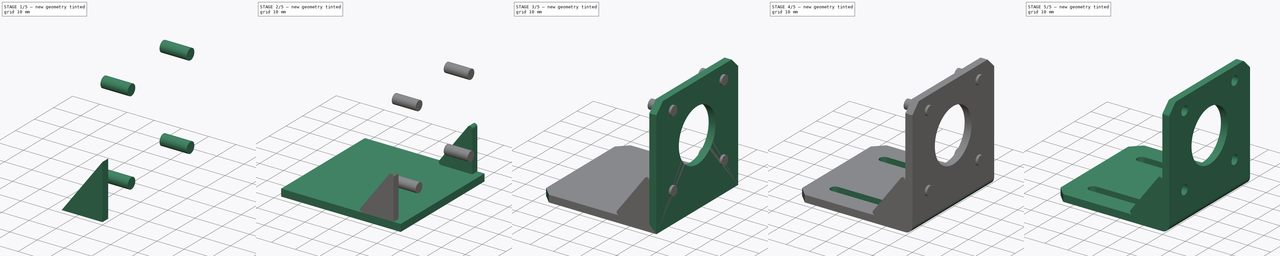
[diagram: build sequence overview — one tinted view per stage of 5, left to right]
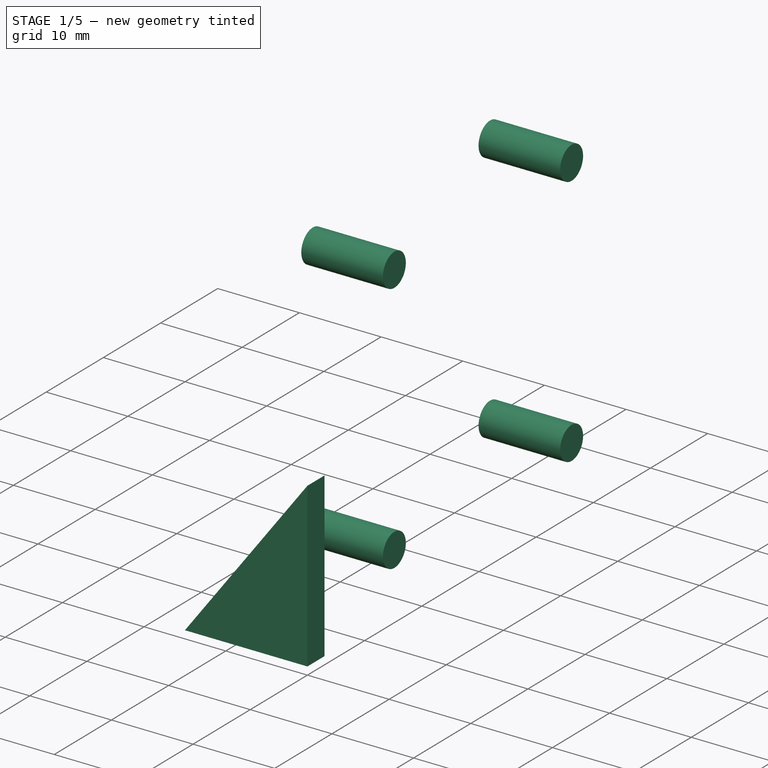
[diagram: stage 1 of 5 — iso view after this stage's code; geometry added in this stage tinted green]
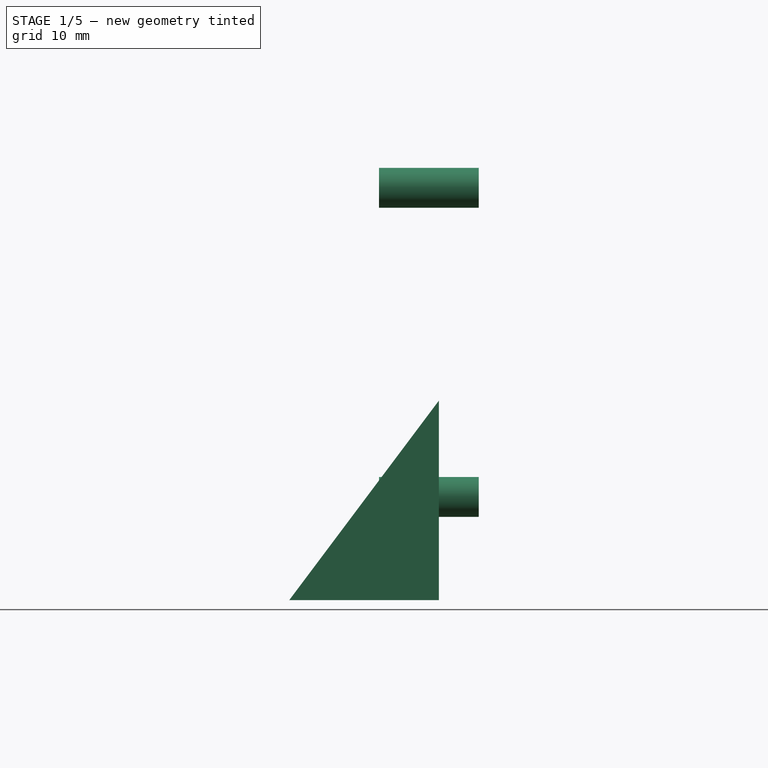
[diagram: stage 1 of 5 — front view after this stage's code; geometry added in this stage tinted green]
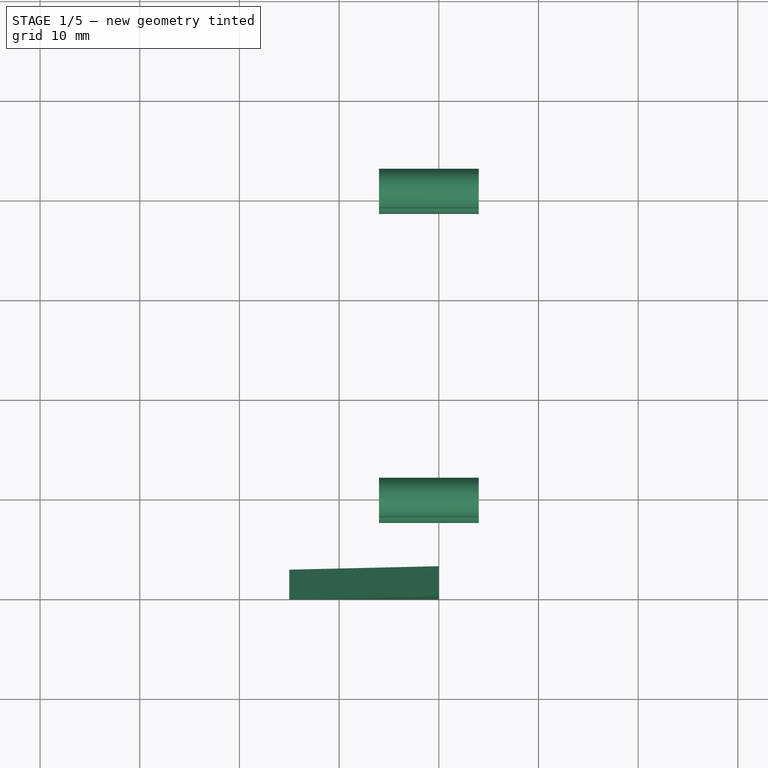
[diagram: stage 1 of 5 — top view after this stage's code; geometry added in this stage tinted green]
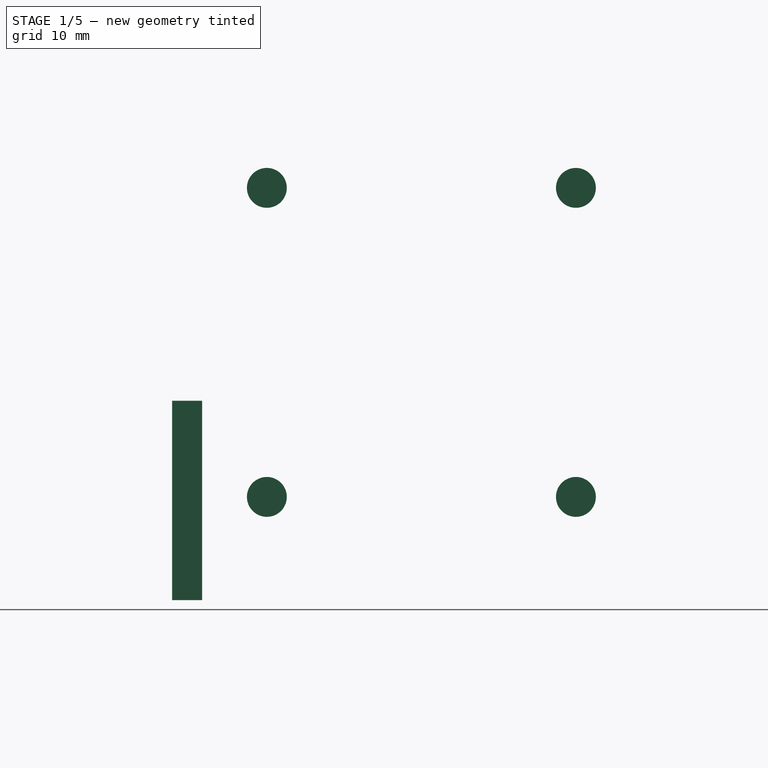
[diagram: stage 1 of 5 — right view after this stage's code; geometry added in this stage tinted green]
FCSTD DOCUMENT  (FreeCAD 0.16R)
Label: Nema-17_Mount_Bracket
License: CreativeCommons Attribution-ShareAlike
LicenseURL: http://creativecommons.org/licenses/by-sa/4.0/
objects: PartDesign::Fillet×4, Part::Box×2, Part::MultiFuse×2, Sketcher::SketchObject×2, PartDesign::Pocket×2, Part::FeaturePython×2, PartDesign::Chamfer×1, Part::Wedge×1, Part::Cylinder×1, Part::Cut×1
note: 20 computed .brp shape members not serialized (recipe doc carries the construction recipe); baked Part::Feature solids carry a one-line shape summary decoded from their .brp

FEATURE [Part::Wedge] Wedge  label="Nema-17_MountBracket_Cradle"
  Placement = pos=(0,0,3) rot=(0,0,1;1.5708rad)
  X2max = 3
  X2min = 0
  Xmax = 3
  Xmin = 0
  Ymax = 15
  Ymin = 0
  Z2max = 0
  Z2min = 0
  Zmax = 20
  Zmin = 0
FEATURE [Part::Cylinder] Cylinder  label="Hole1"
  Angle = 360
  Height = 10
  Placement = pos=(-6,9.5,13.35) rot=(0,1,0;1.5708rad)
  Radius = 2
FEATURE [Part::FeaturePython] Array001  label="Holes"  # Draft array (typed FeaturePython)
  Angle = 360
  ArrayType = 0
  Axis = (0,0,1)
  Base = -> Cylinder
  Center = (0,0,0)
  Fuse = false
  IntervalAxis = (0,0,0)
  IntervalX = (0,0,0)
  IntervalY = (0,31,0)
  IntervalZ = (0,0,31)
  NumberPolar = 1
  NumberX = 1
  NumberY = 2
  NumberZ = 2
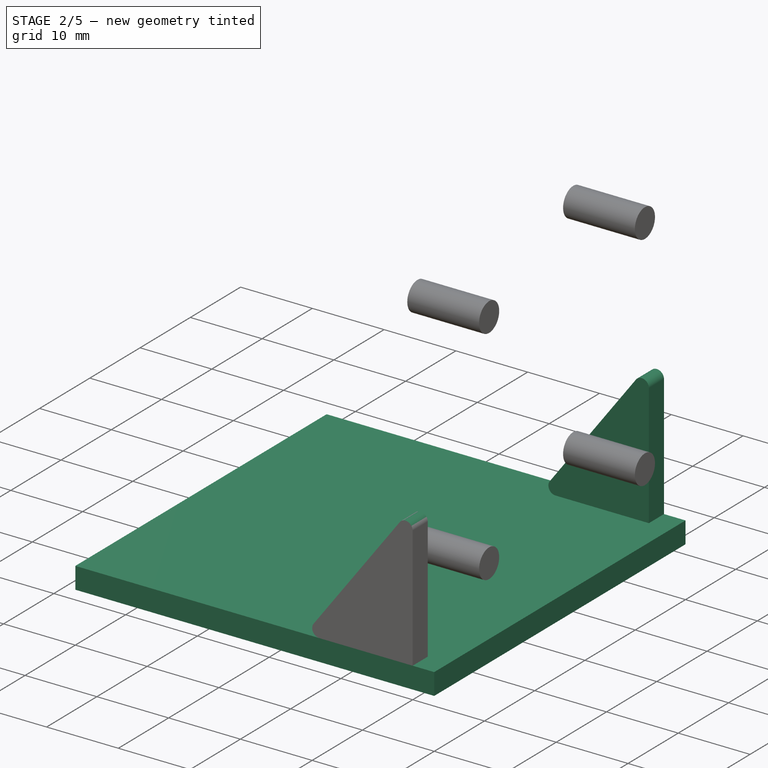
[diagram: stage 2 of 5 — iso view after this stage's code; geometry added in this stage tinted green]
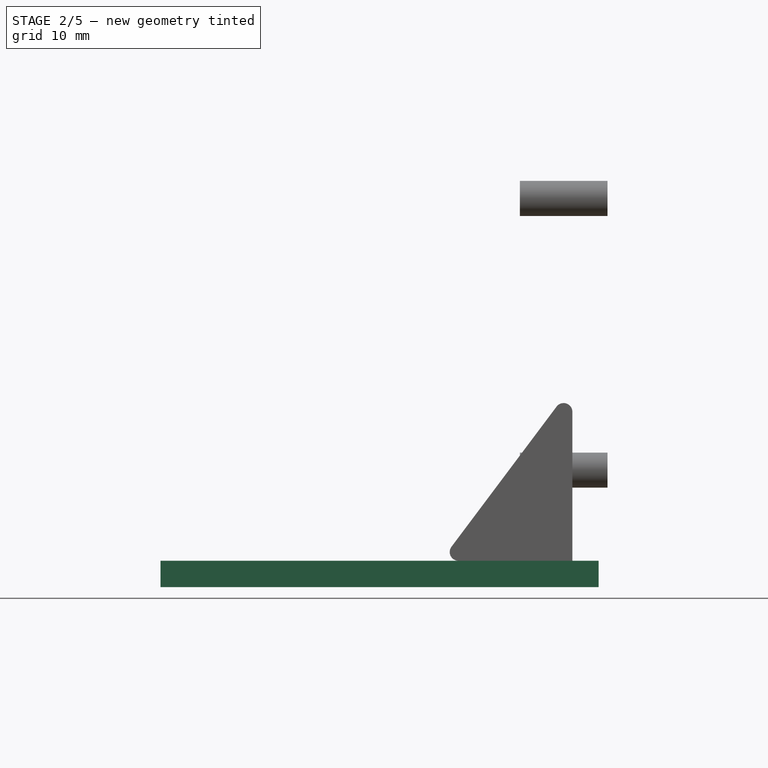
[diagram: stage 2 of 5 — front view after this stage's code; geometry added in this stage tinted green]
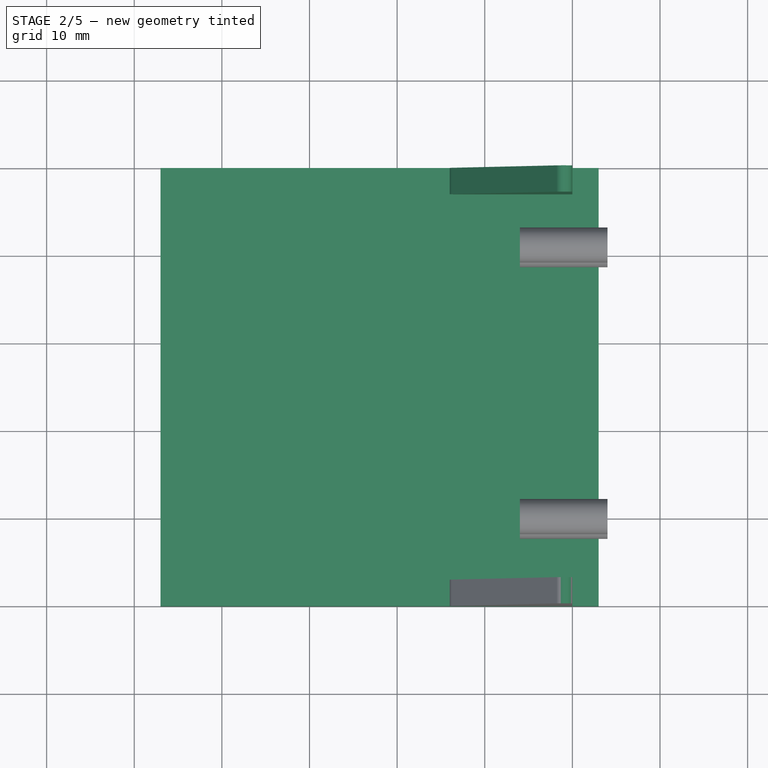
[diagram: stage 2 of 5 — top view after this stage's code; geometry added in this stage tinted green]
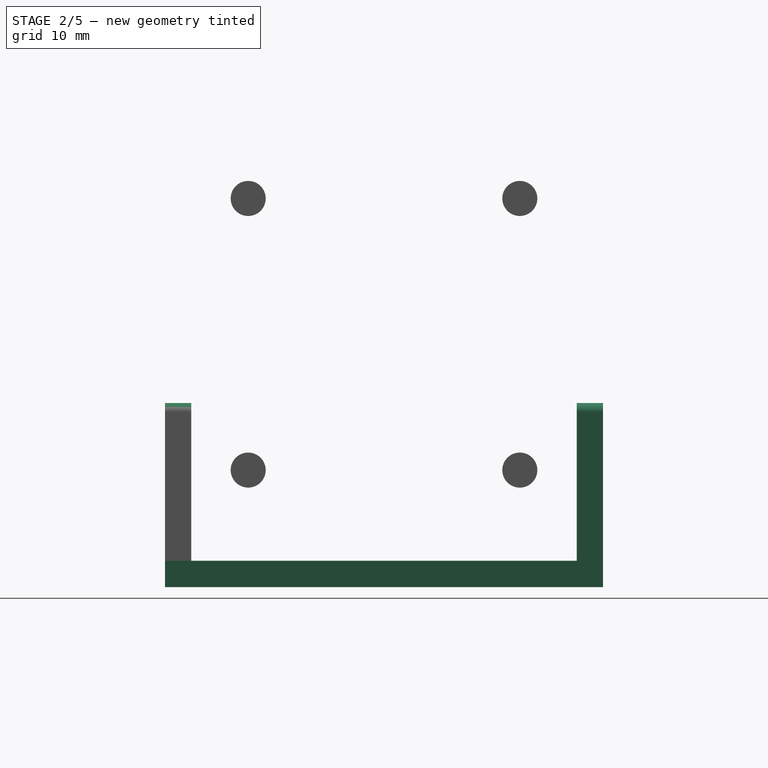
[diagram: stage 2 of 5 — right view after this stage's code; geometry added in this stage tinted green]
FEATURE [Part::Box] Box005  label="Nema-17_MountBracket_Horizontal"
  Height = 3
  Length = 50
  Placement = pos=(-47,0,0) rot=(0,0,1;0rad)
  Width = 50
FEATURE [PartDesign::Fillet] Fillet002
  Base = -> Wedge [Edge8,Edge9]
  Placement = pos=(0,0,3) rot=(0,0,1;1.5708rad)
  Radius = 1
FEATURE [Part::FeaturePython] Array  label="Cradles"  # Draft array (typed FeaturePython)
  Angle = 360
  ArrayType = 0
  Axis = (0,0,1)
  Base = -> Fillet002
  Center = (0,0,0)
  Fuse = false
  IntervalAxis = (0,0,0)
  IntervalX = (0,0,0)
  IntervalY = (0,0,0)
  IntervalZ = (0,47,0)
  NumberPolar = 1
  NumberX = 1
  NumberY = 1
  NumberZ = 2
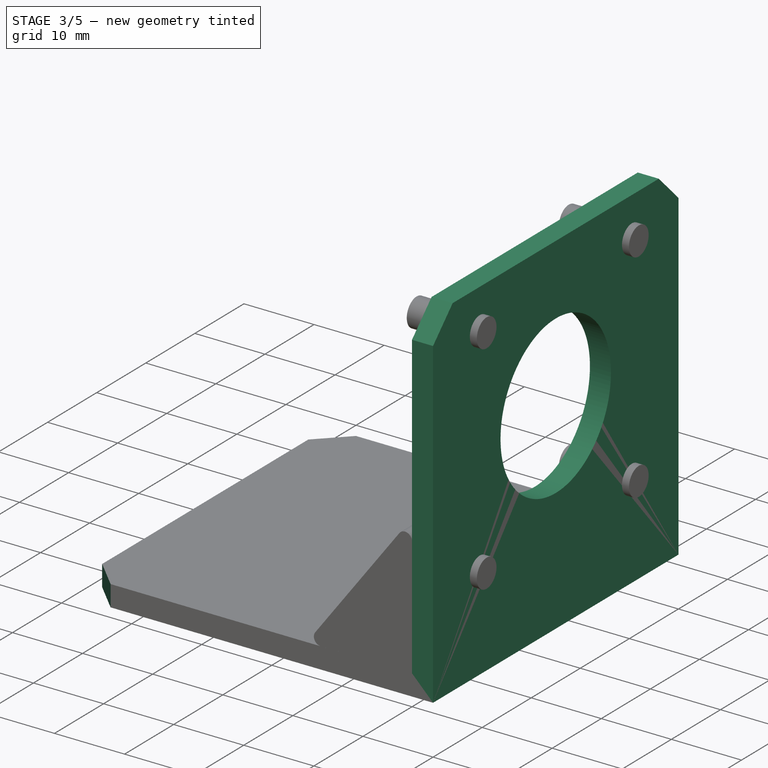
[diagram: stage 3 of 5 — iso view after this stage's code; geometry added in this stage tinted green]
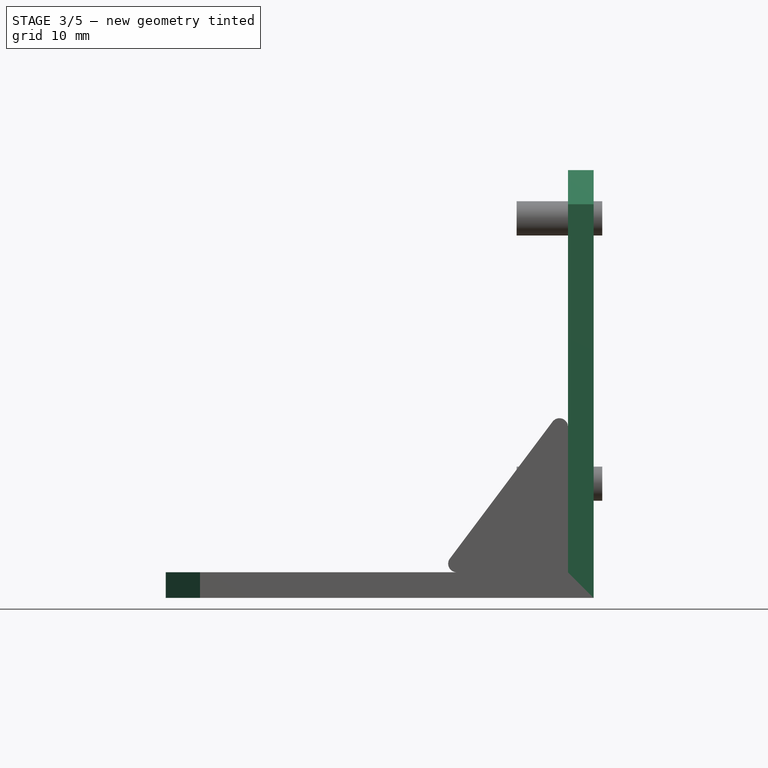
[diagram: stage 3 of 5 — front view after this stage's code; geometry added in this stage tinted green]
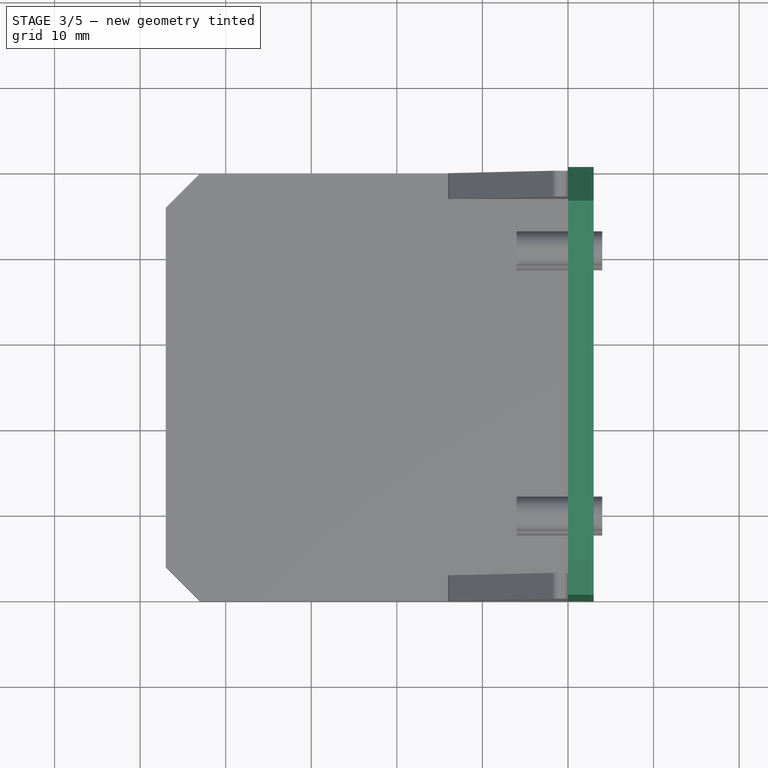
[diagram: stage 3 of 5 — top view after this stage's code; geometry added in this stage tinted green]
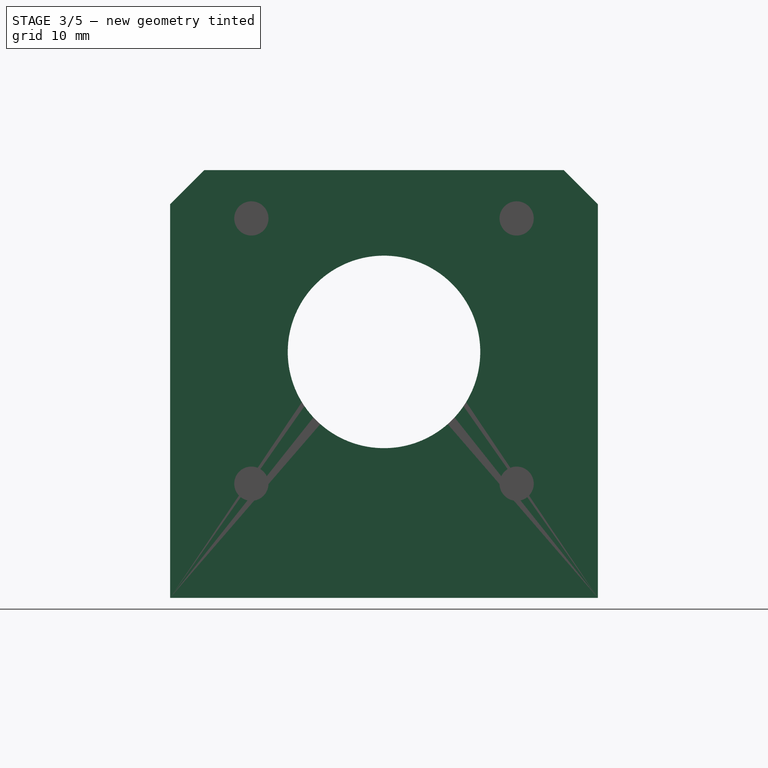
[diagram: stage 3 of 5 — right view after this stage's code; geometry added in this stage tinted green]
FEATURE [Part::Box] Box004  label="Nema-17_MountBracket_Vertical"
  Height = 50
  Length = 3
  Width = 50
  expr: Placement.Base.x = 0
FEATURE [Part::MultiFuse] Fusion019  label="Nema-17_MountBracket_Initial"
  Shapes = -> [Box005,Box004]
FEATURE [PartDesign::Chamfer] Chamfer018  label="Nema-17_MountBracket_WithChamfers"
  Base = -> Fusion019 [Edge11,Edge13,Edge3,Edge1]
  Size = 4
FEATURE [Sketcher::SketchObject] Sketch  label="SketchHole"
  ExternalGeometry = -> [Chamfer018]
  Placement = pos=(0,0,0) rot=(0.57735,-0.57735,-0.57735;2.0944rad)
  Support = -> Chamfer018 [Face7]
  sketch-geometry (4):
    g0: Circle CenterX=-25 CenterY=28.75 CenterZ=0 NormalX=0 NormalY=0 NormalZ=1 Radius=11.25
    g1: LineSegment StartX=-25 StartY=40 StartZ=0 EndX=-25 EndY=50 EndZ=0
    g2: LineSegment StartX=-36.25 StartY=28.75 StartZ=0 EndX=-50 EndY=28.75 EndZ=0
    g3: LineSegment StartX=-13.75 StartY=28.75 StartZ=0 EndX=0 EndY=28.75 EndZ=0
  constraints (15):
    c: PointOnObject(g1,g0)
    c: PointOnObject(g1,g-3)
    c: Vertical(g1)
    c: PointOnObject(g2,g0)
    c: PointOnObject(g2,g-4)
    c: Horizontal(g2)
    c: PointOnObject(g3,g0)
    c: PointOnObject(g3,g-5)
    c: Horizontal(g3)
    c: Perpendicular(g0,g3)
    c: Perpendicular(g0,g2)
    c: Perpendicular(g0,g1)
    c: Equal(g2,g3)
    c: DistanceY(g1,g1) = 10
    c: Radius(g0) = 11.25
FEATURE [PartDesign::Pocket] Pocket  label="Nema-17_MountBracket_WithHole"
  Length = 5
  Sketch = -> Sketch
  Type = 1
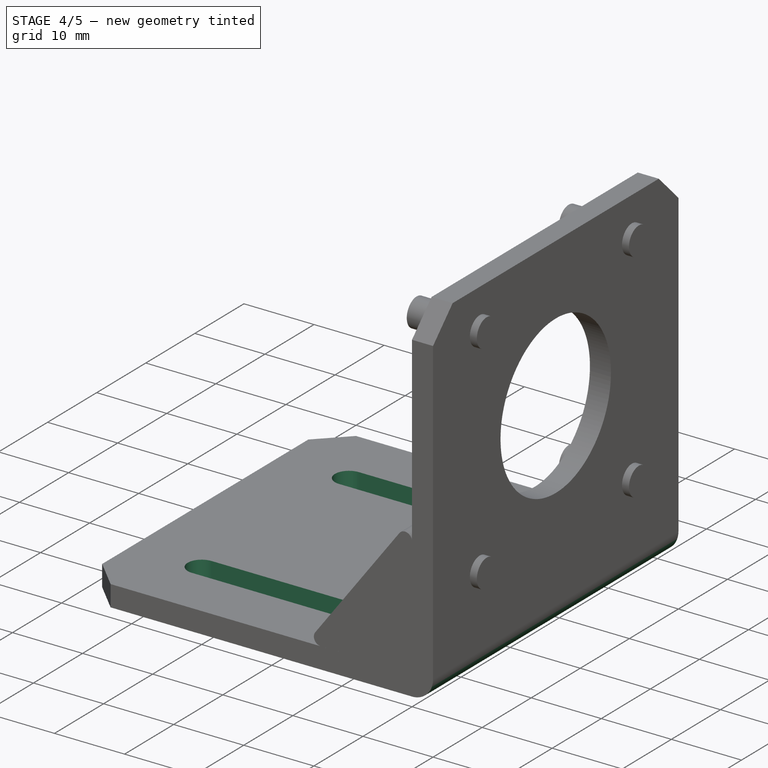
[diagram: stage 4 of 5 — iso view after this stage's code; geometry added in this stage tinted green]
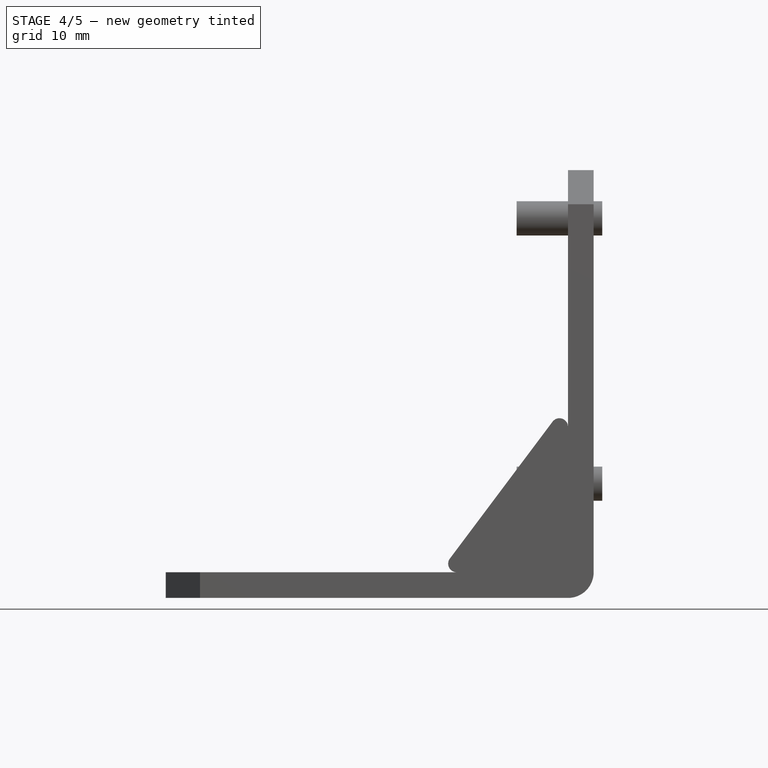
[diagram: stage 4 of 5 — front view after this stage's code; geometry added in this stage tinted green]
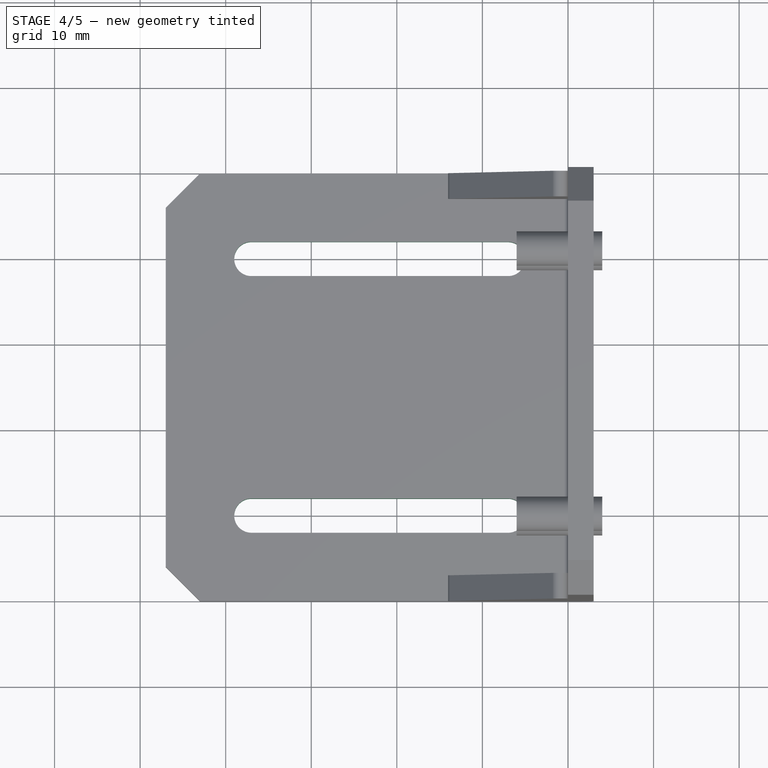
[diagram: stage 4 of 5 — top view after this stage's code; geometry added in this stage tinted green]
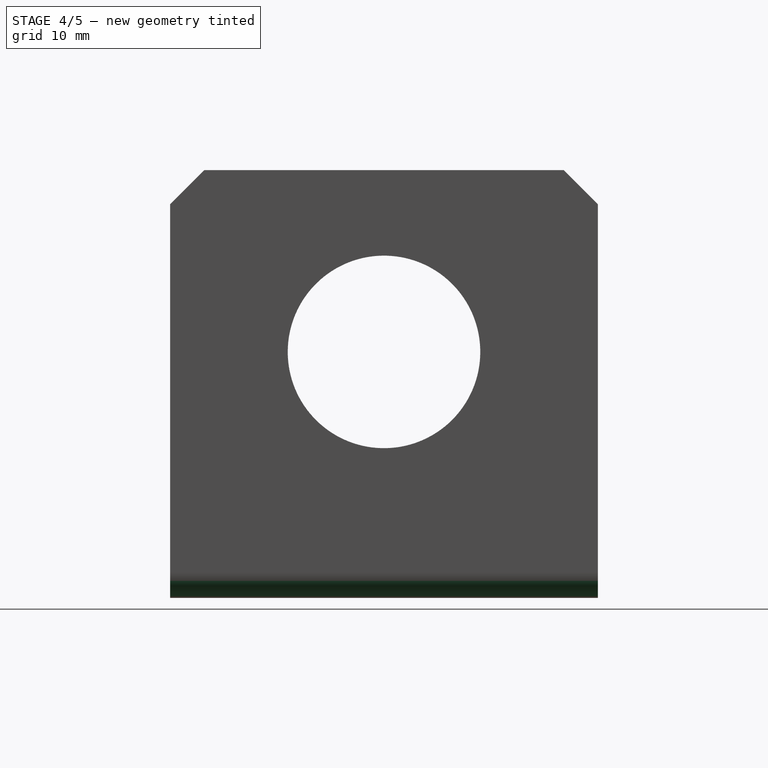
[diagram: stage 4 of 5 — right view after this stage's code; geometry added in this stage tinted green]
FEATURE [Sketcher::SketchObject] Sketch035  label="Sketch_Nema-17_MountBracket_Slots"
  ExternalGeometry = -> [Pocket]
  Placement = pos=(0,0,3) rot=(0,0,1;0rad)
  Support = -> Pocket [Face2]
  sketch-geometry (14):
    g0: ArcOfCircle CenterX=-37 CenterY=40 CenterZ=0 NormalX=0 NormalY=0 NormalZ=1 Radius=2 StartAngle=1.5708 EndAngle=4.71239
    g1: ArcOfCircle CenterX=-7 CenterY=40 CenterZ=0 NormalX=0 NormalY=0 NormalZ=1 Radius=2 StartAngle=4.71239 EndAngle=7.85398
    g2: LineSegment StartX=-37 StartY=38 StartZ=0 EndX=-7 EndY=38 EndZ=0
    g3: LineSegment StartX=-37 StartY=42 StartZ=0 EndX=-7 EndY=42 EndZ=0
    g4: LineSegment [constr] StartX=-39 StartY=40 StartZ=0 EndX=-5 EndY=40 EndZ=0
    g5: ArcOfCircle CenterX=-37 CenterY=10 CenterZ=0 NormalX=0 NormalY=0 NormalZ=1 Radius=2 StartAngle=1.5708 EndAngle=4.71239
    g6: ArcOfCircle CenterX=-7 CenterY=10 CenterZ=0 NormalX=0 NormalY=0 NormalZ=1 Radius=2 StartAngle=4.71239 EndAngle=7.85398
    g7: LineSegment StartX=-37 StartY=8 StartZ=0 EndX=-7 EndY=8 EndZ=0
    g8: LineSegment StartX=-37 StartY=12 StartZ=0 EndX=-7 EndY=12 EndZ=0
    g9: LineSegment [constr] StartX=-39 StartY=10 StartZ=0 EndX=-5 EndY=10 EndZ=0
    g10: LineSegment [constr] StartX=-37 StartY=38 StartZ=0 EndX=-37 EndY=12 EndZ=0
    g11: LineSegment [constr] StartX=-7 StartY=42 StartZ=0 EndX=-7 EndY=50 EndZ=0
    g12: LineSegment [constr] StartX=-7 StartY=8 StartZ=0 EndX=-7 EndY=0 EndZ=0
    g13: LineSegment [constr] StartX=-39 StartY=40 StartZ=0 EndX=-47 EndY=40 EndZ=0
  constraints (41):
    c: Tangent(g0,g3) = 1.5708
    c: Tangent(g0,g2) = -1.5708
    c: Tangent(g2,g1) = -1.5708
    c: Tangent(g3,g1) = 1.5708
    c: Horizontal(g2)
    c: Equal(g0,g1)
    c: PointOnObject(g4,g0)
    c: PointOnObject(g4,g1)
    c: Horizontal(g4)
    c: Perpendicular(g0,g4)
    c: DistanceX(g4,g4) = 34
    c: Radius(g0) = 2
    c: Tangent(g5,g8) = 1.5708
    c: Tangent(g5,g7) = -1.5708
    c: Tangent(g7,g6) = -1.5708
    c: Tangent(g8,g6) = 1.5708
    c: Horizontal(g7)
    c: Equal(g5,g6)
    c: PointOnObject(g9,g5)
    c: PointOnObject(g9,g6)
    c: Horizontal(g9)
    c: Perpendicular(g5,g9)
    c: Equal(g4,g9) = 34
    c: Equal(g0,g5) = 2
    c: PointOnObject(g10,g2)
    c: PointOnObject(g10,g8)
    c: Vertical(g10)
    c: DistanceX(g5,g10) = 0
    c: DistanceX(g0,g10) = 0
    c: Coincident(g11,g1)
    c: Vertical(g11)
    c: Coincident(g12,g6)
    c: Vertical(g12)
    c: Equal(g12,g11)
    c: Coincident(g13,g4)
    c: Horizontal(g13)
    c: DistanceX(g13,g13) = 8
    c: PointOnObject(g13,g-5)
    c: PointOnObject(g11,g-3)
    c: PointOnObject(g12,g-4)
    c: DistanceY(g9,g4) = 30
FEATURE [PartDesign::Pocket] Pocket001  label="Nema-17_MountBracket_WithSlots"
  Length = 5
  Sketch = -> Sketch035
  Type = 1
FEATURE [PartDesign::Fillet] Fillet  label="Nema-17_MountBracket_Fillet"
  Base = -> Pocket001 [Edge23]
  Radius = 3
FEATURE [PartDesign::Fillet] Fillet001  label="Nema-17_MountBracket_Fillet2"
  Base = -> Fillet [Edge53]
  Radius = 0.5
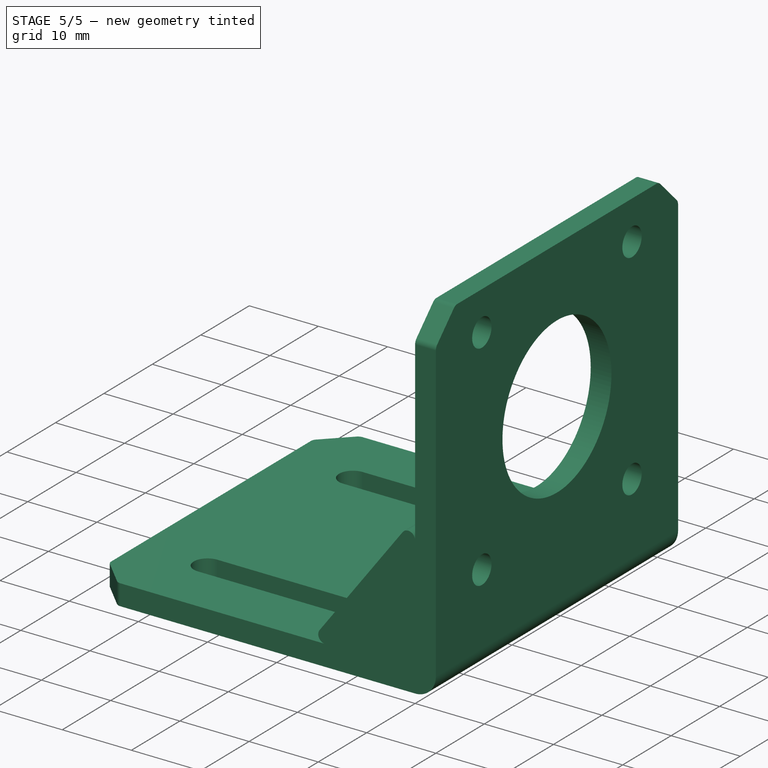
[diagram: stage 5 of 5 — iso view after this stage's code; geometry added in this stage tinted green]
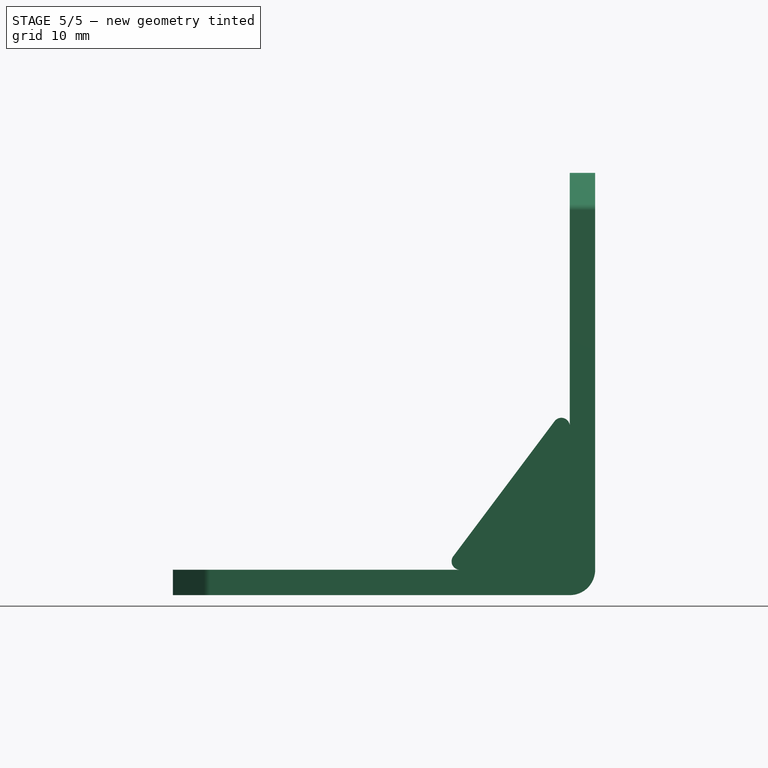
[diagram: stage 5 of 5 — front view after this stage's code; geometry added in this stage tinted green]
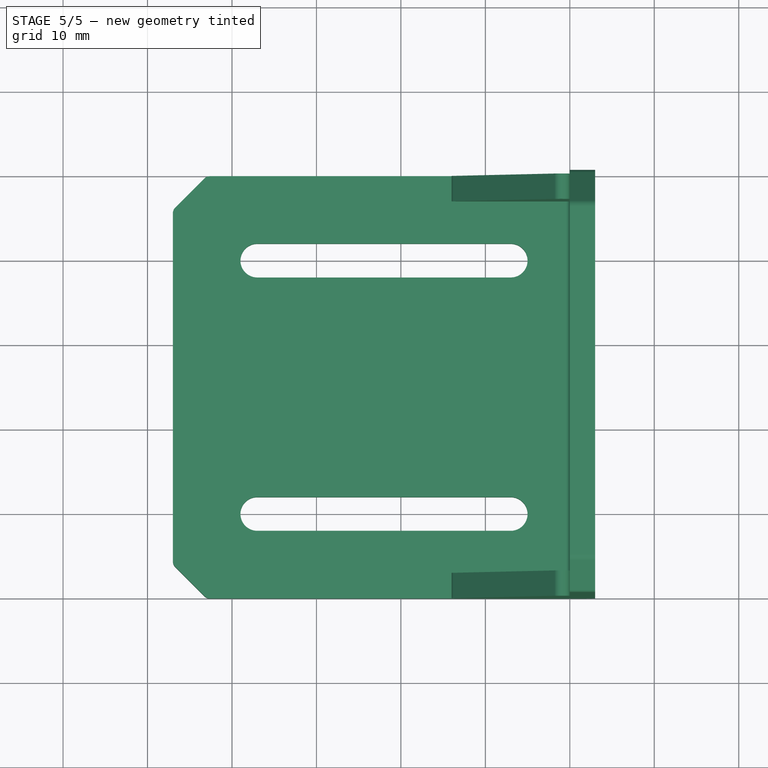
[diagram: stage 5 of 5 — top view after this stage's code; geometry added in this stage tinted green]
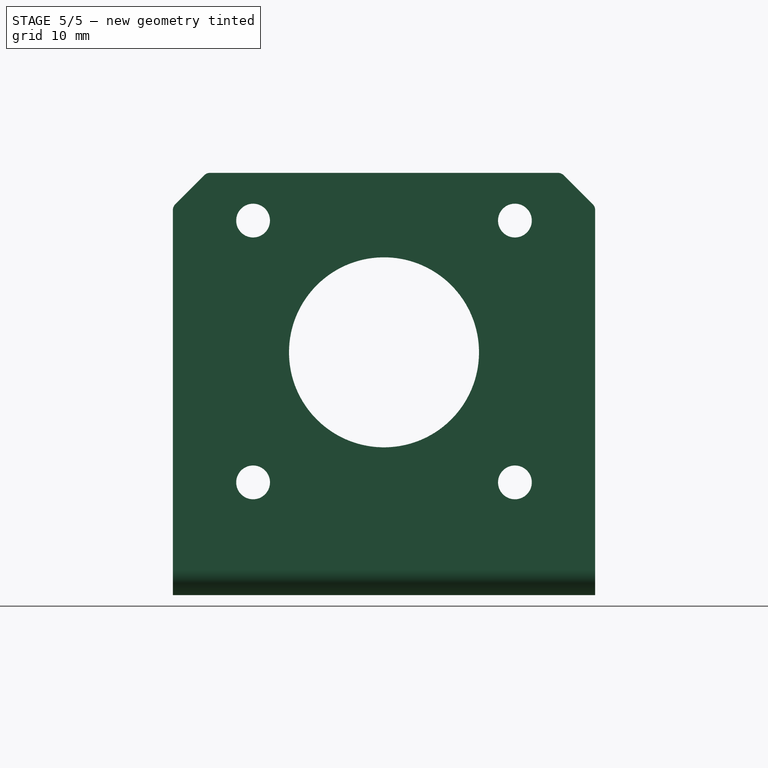
[diagram: stage 5 of 5 — right view after this stage's code; geometry added in this stage tinted green]
FEATURE [Part::MultiFuse] Fusion  label="Nema-17_MountBracket_WithCradles"
  Shapes = -> [Fillet001,Array]
FEATURE [Part::Cut] Cut  label="Nema-17_MountBracket_With4Holes"
  Base = -> Fusion
  Tool = -> Array001
FEATURE [PartDesign::Fillet] Fillet003  label="Nema-17_MountBracket"
  Base = -> Cut [Edge25,Edge78,Edge93,Edge47,Edge45,Edge19,Edge3,Edge2]
  Radius = 1
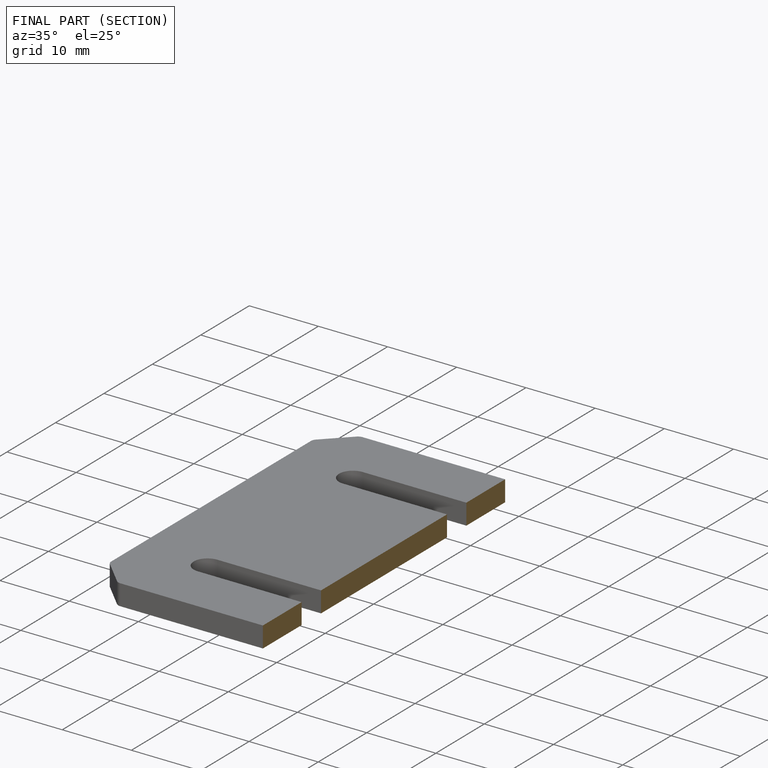
[diagram: finished part — half-section view (interior)]
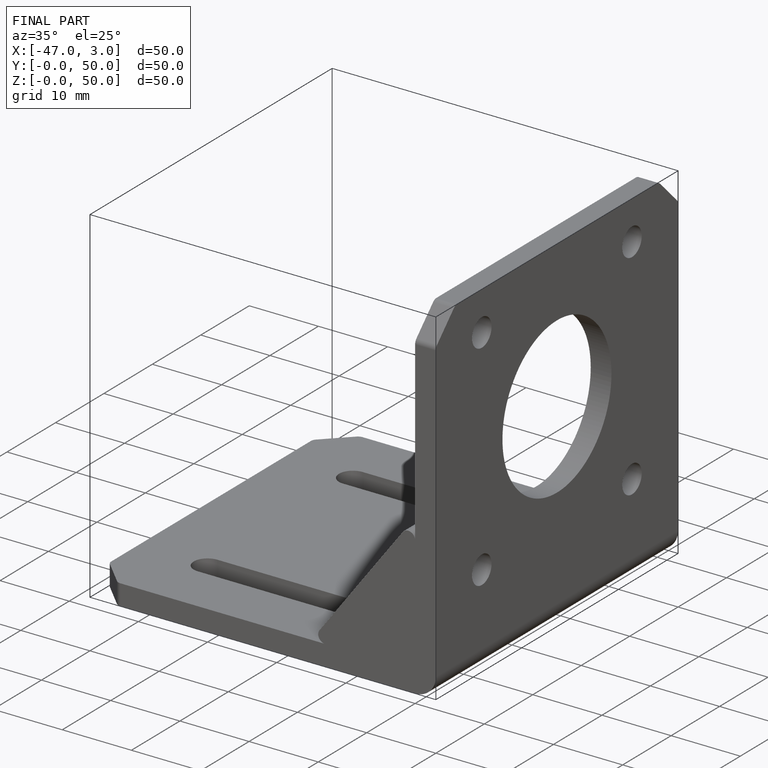
[diagram: finished part — iso view with bounding-box wireframe]
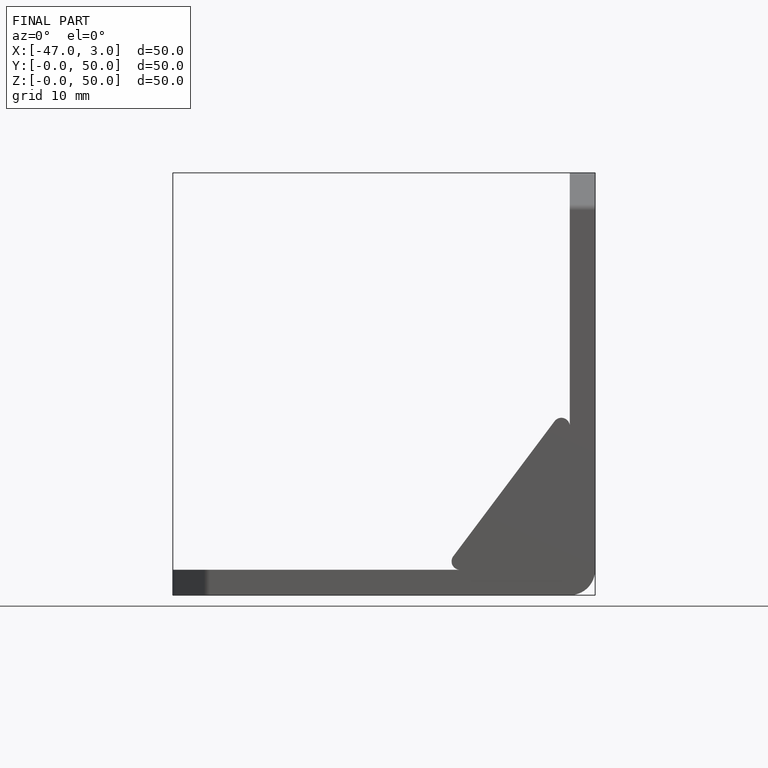
[diagram: finished part — front view with bounding-box wireframe]
